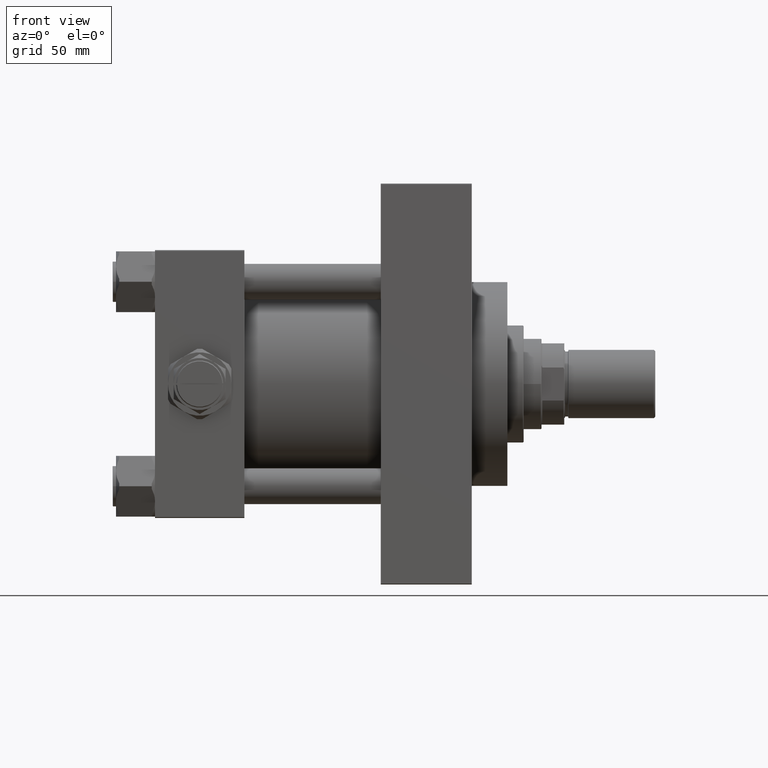
[diagram: clean part render]
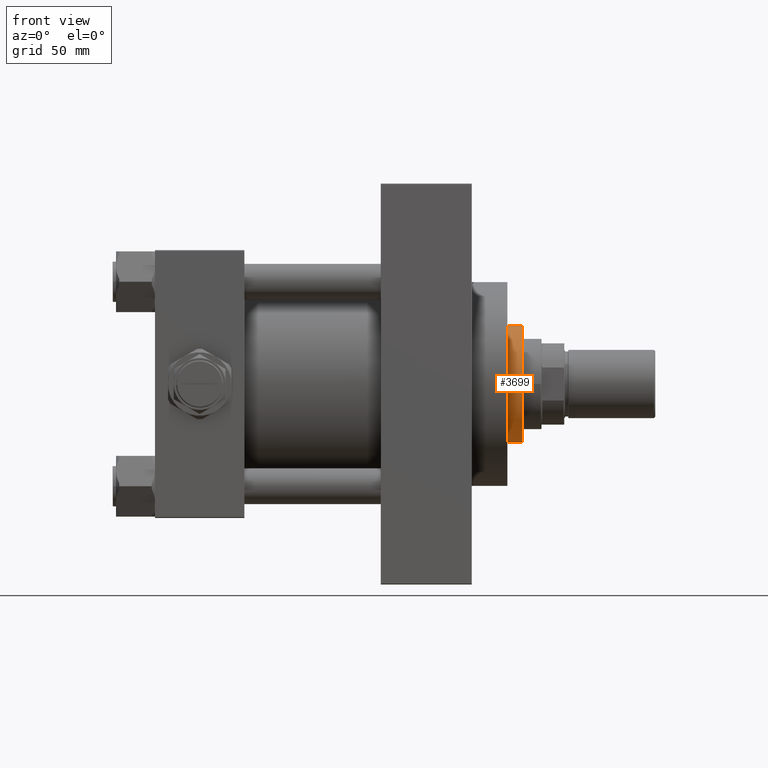
[diagram: same view with one face highlighted and labeled with its STEP entity id]
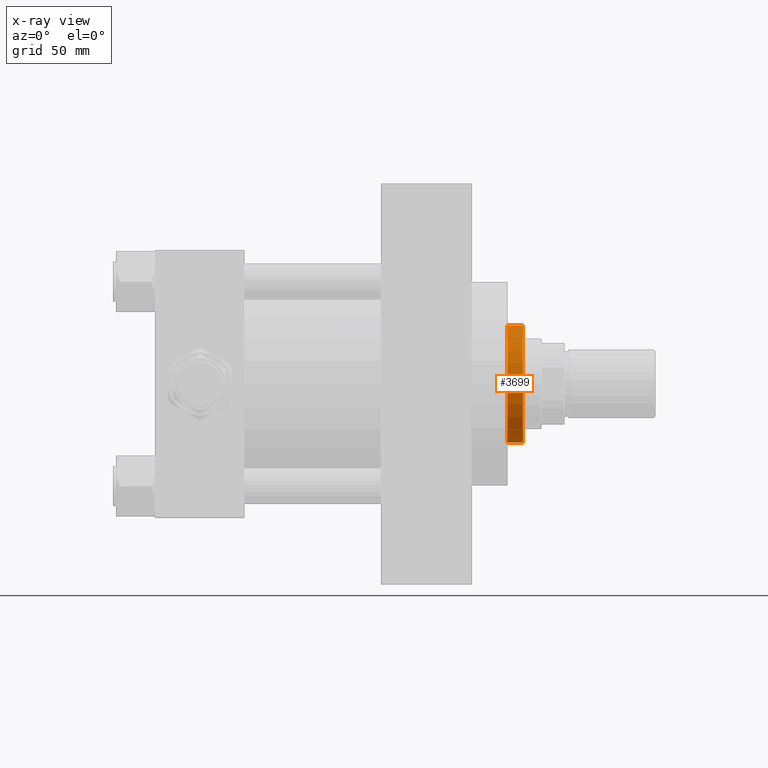
[diagram: x-ray of the same camera — body ghosted, the highlighted face saturated]
A machine part, front view. The second image highlights one B-rep face of the part: STEP entity #3699.
The next image is the same camera in x-ray: the body ghosted, the highlighted face saturated — about 0% of this face is hidden behind the body in this view.
In plain terms, the highlighted cylindrical surface (partial cylindrical patch) has radius 36 mm, axis along (-1, 0, 0).
Its self-contained STEP definition (entity closure, byte-faithful):
#1357 = DIRECTION ( 'NONE',  ( -1.000000000000000000, 0.000000000000000000, 0.000000000000000000 ) ) ;
#1998 = ORIENTED_EDGE ( 'NONE', *, *, #22800, .T. ) ;
#2517 = DIRECTION ( 'NONE',  ( -0.000000000000000000, -0.000000000000000000, -1.000000000000000000 ) ) ;
#2710 = VECTOR ( 'NONE', #2517, 1000.000000000000000 ) ;
#3699 = ADVANCED_FACE ( 'NONE', ( #8941 ), #47077, .T. ) ;
#4803 = VERTEX_POINT ( 'NONE', #38446 ) ;
#5435 = CARTESIAN_POINT ( 'NONE',  ( 36.00000000000000000, 4.408728476930470856E-15, 52.75999999999999091 ) ) ;
#7165 = DIRECTION ( 'NONE',  ( 1.000000000000000000, 0.000000000000000000, 0.000000000000000000 ) ) ;
#7371 = VECTOR ( 'NONE', #28188, 1000.000000000000000 ) ;
#8653 = VERTEX_POINT ( 'NONE', #5435 ) ;
#8703 = AXIS2_PLACEMENT_3D ( 'NONE', #20566, #9182, #1357 ) ;
#8941 = FACE_OUTER_BOUND ( 'NONE', #8998, .T. ) ;
#8998 = EDGE_LOOP ( 'NONE', ( #30485, #35011, #1998, #40384 ) ) ;
#9182 = DIRECTION ( 'NONE',  ( -0.000000000000000000, -0.000000000000000000, -1.000000000000000000 ) ) ;
#13541 = CARTESIAN_POINT ( 'NONE',  ( 0.000000000000000000, 0.000000000000000000, 52.75999999999999091 ) ) ;
#14883 = CARTESIAN_POINT ( 'NONE',  ( 36.00000000000000000, 4.408728476930470856E-15, 53.26000000000000512 ) ) ;
#15108 = CARTESIAN_POINT ( 'NONE',  ( -36.00000000000000000, 0.000000000000000000, 43.25999999999999801 ) ) ;
#15252 = EDGE_CURVE ( 'NONE', #22637, #44630, #47130, .T. ) ;
#16383 = AXIS2_PLACEMENT_3D ( 'NONE', #39751, #35710, #47335 ) ;
#18672 = EDGE_CURVE ( 'NONE', #22637, #8653, #40519, .T. ) ;
#20566 = CARTESIAN_POINT ( 'NONE',  ( 0.000000000000000000, 0.000000000000000000, 53.26000000000000512 ) ) ;
#20722 = EDGE_CURVE ( 'NONE', #8653, #4803, #49477, .T. ) ;
#22637 = VERTEX_POINT ( 'NONE', #40811 ) ;
#22800 = EDGE_CURVE ( 'NONE', #4803, #44630, #38129, .T. ) ;
#23666 = CARTESIAN_POINT ( 'NONE',  ( -36.00000000000000000, 0.000000000000000000, 53.26000000000000512 ) ) ;
#28188 = DIRECTION ( 'NONE',  ( -0.000000000000000000, -0.000000000000000000, -1.000000000000000000 ) ) ;
#30485 = ORIENTED_EDGE ( 'NONE', *, *, #18672, .T. ) ;
#33257 = AXIS2_PLACEMENT_3D ( 'NONE', #13541, #36760, #7165 ) ;
#35011 = ORIENTED_EDGE ( 'NONE', *, *, #20722, .T. ) ;
#35710 = DIRECTION ( 'NONE',  ( 0.000000000000000000, 0.000000000000000000, 1.000000000000000000 ) ) ;
#36760 = DIRECTION ( 'NONE',  ( 0.000000000000000000, 0.000000000000000000, -1.000000000000000000 ) ) ;
#38129 = CIRCLE ( 'NONE', #16383, 36.00000000000000000 ) ;
#38446 = CARTESIAN_POINT ( 'NONE',  ( 36.00000000000000000, 4.408728476930470856E-15, 43.25999999999999801 ) ) ;
#39751 = CARTESIAN_POINT ( 'NONE',  ( 0.000000000000000000, 0.000000000000000000, 43.25999999999999801 ) ) ;
#40384 = ORIENTED_EDGE ( 'NONE', *, *, #15252, .F. ) ;
#40519 = CIRCLE ( 'NONE', #33257, 36.00000000000000000 ) ;
#40811 = CARTESIAN_POINT ( 'NONE',  ( -36.00000000000000000, 0.000000000000000000, 52.75999999999999091 ) ) ;
#44630 = VERTEX_POINT ( 'NONE', #15108 ) ;
#47077 = CYLINDRICAL_SURFACE ( 'NONE', #8703, 36.00000000000000000 ) ;
#47130 = LINE ( 'NONE', #23666, #7371 ) ;
#47335 = DIRECTION ( 'NONE',  ( 1.000000000000000000, 0.000000000000000000, 0.000000000000000000 ) ) ;
#49477 = LINE ( 'NONE', #14883, #2710 ) ;